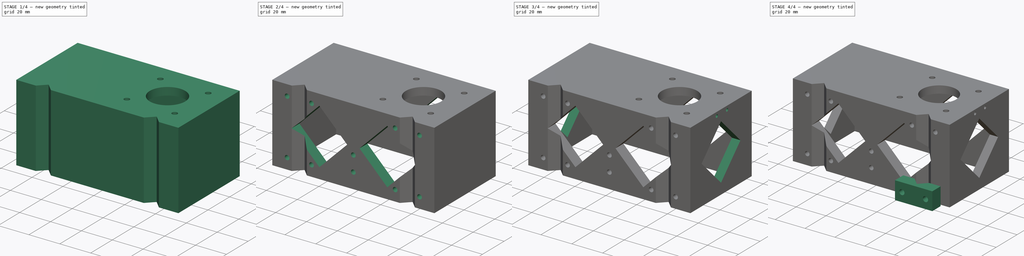
[diagram: build sequence overview — one tinted view per stage of 4, left to right]
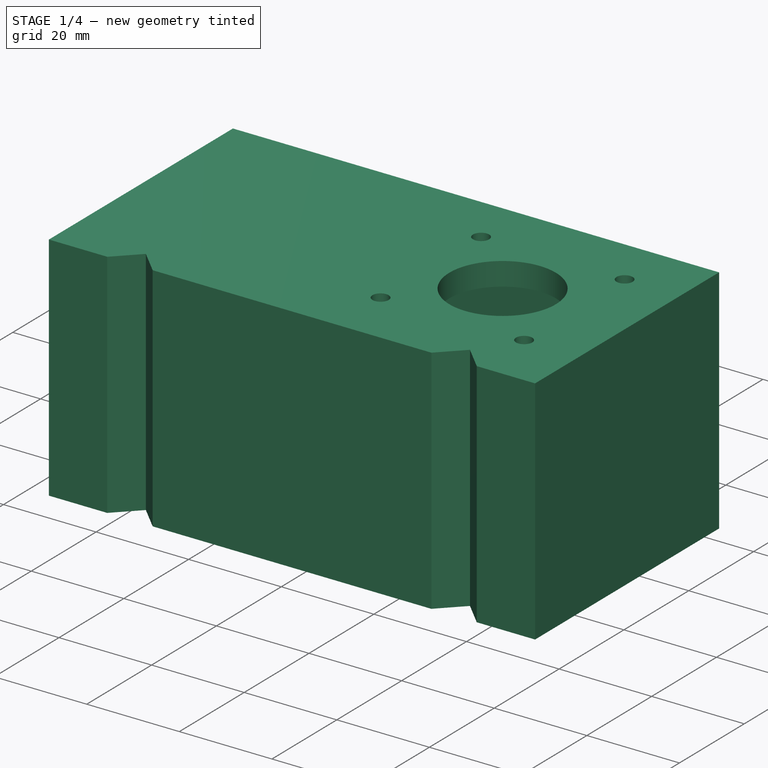
[diagram: stage 1 of 4 — iso view after this stage's code; geometry added in this stage tinted green]
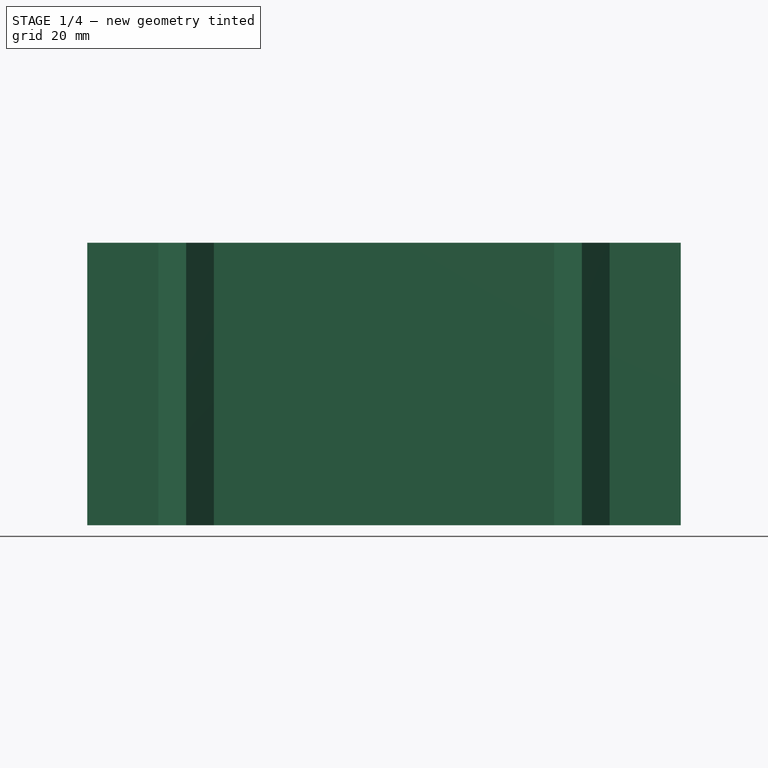
[diagram: stage 1 of 4 — front view after this stage's code; geometry added in this stage tinted green]
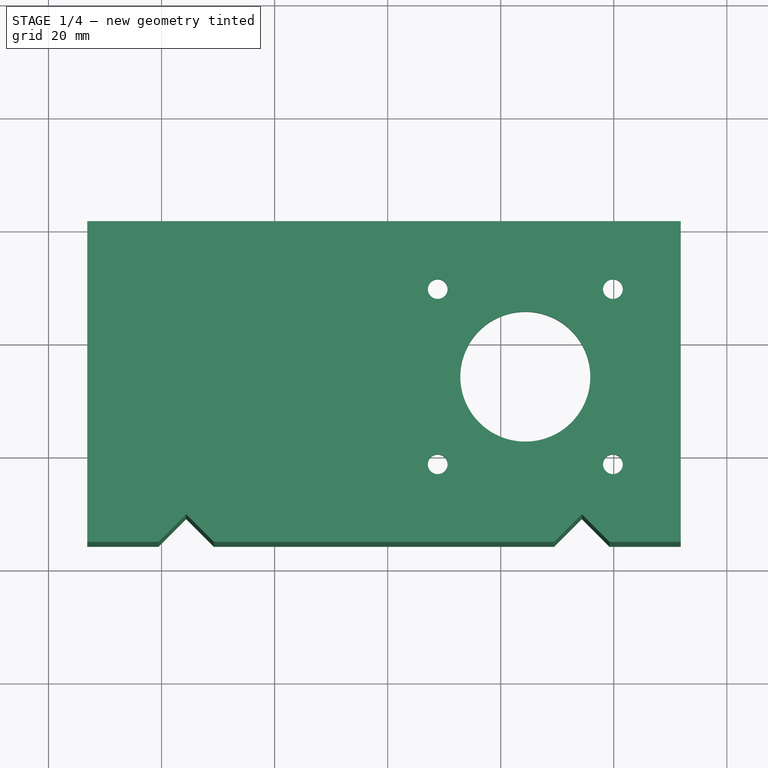
[diagram: stage 1 of 4 — top view after this stage's code; geometry added in this stage tinted green]
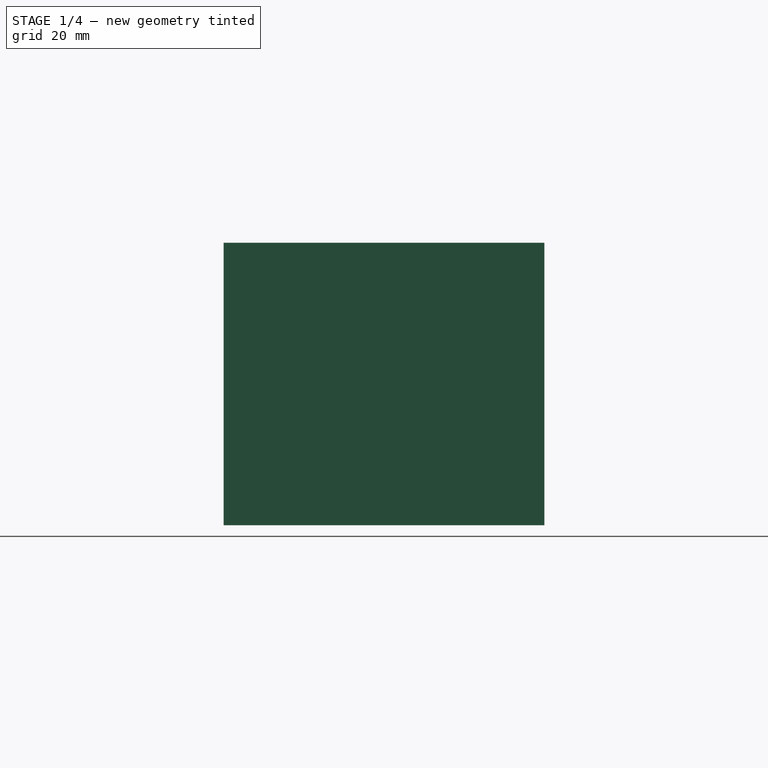
[diagram: stage 1 of 4 — right view after this stage's code; geometry added in this stage tinted green]
FCSTD DOCUMENT  (FreeCAD 0.16R4924 (Git))
Label: monty_Zbox
License: All rights reserved
LicenseURL: http://en.wikipedia.org/wiki/All_rights_reserved
objects: Sketcher::SketchObject×10, PartDesign::Pocket×7, PartDesign::Pad×2
note: 28 computed .brp shape members not serialized (recipe doc carries the construction recipe); baked Part::Feature solids carry a one-line shape summary decoded from their .brp

FEATURE [Sketcher::SketchObject] Sketch
  sketch-geometry (50):
    g0: Circle CenterX=104.35 CenterY=53.5 CenterZ=0 NormalX=0 NormalY=0 NormalZ=1 Radius=11.5
    g1: Circle [constr] CenterX=44.35 CenterY=23.5 CenterZ=0 NormalX=0 NormalY=0 NormalZ=1 Radius=4
    g2: Circle [constr] CenterX=114.35 CenterY=23.5 CenterZ=0 NormalX=0 NormalY=0 NormalZ=1 Radius=4
    g3: LineSegment [constr] StartX=44.35 StartY=23.5 StartZ=0 EndX=114.35 EndY=23.5 EndZ=0
    g4: LineSegment [constr] StartX=104.35 StartY=53.5 StartZ=0 EndX=104.35 EndY=23.5 EndZ=0
    g5: LineSegment [constr] StartX=119.85 StartY=69 StartZ=0 EndX=88.85 EndY=38 EndZ=0
    g6: LineSegment [constr] StartX=88.85 StartY=69 StartZ=0 EndX=119.85 EndY=38 EndZ=0
    g7: LineSegment [constr] StartX=88.85 StartY=69 StartZ=0 EndX=119.85 EndY=69 EndZ=0
    g8: LineSegment [constr] StartX=119.85 StartY=69 StartZ=0 EndX=119.85 EndY=38 EndZ=0
    g9: LineSegment [constr] StartX=119.85 StartY=38 StartZ=0 EndX=88.85 EndY=38 EndZ=0
    g10: LineSegment [constr] StartX=88.85 StartY=38 StartZ=0 EndX=88.85 EndY=69 EndZ=0
    g11: Circle CenterX=88.85 CenterY=69 CenterZ=0 NormalX=0 NormalY=0 NormalZ=1 Radius=1.75
    g12: Circle CenterX=119.85 CenterY=69 CenterZ=0 NormalX=0 NormalY=0 NormalZ=1 Radius=1.75
    g13: Circle CenterX=88.85 CenterY=38 CenterZ=0 NormalX=0 NormalY=0 NormalZ=1 Radius=1.75
    g14: Circle CenterX=119.85 CenterY=38 CenterZ=0 NormalX=0 NormalY=0 NormalZ=1 Radius=1.75
    g15: LineSegment StartX=39.4431 StartY=24.25 StartZ=0 EndX=44.35 EndY=29.1569 EndZ=0
    g16: LineSegment StartX=44.35 StartY=29.1569 StartZ=0 EndX=49.2569 EndY=24.25 EndZ=0
    g17: LineSegment StartX=49.2569 StartY=24.25 StartZ=0 EndX=109.443 EndY=24.25 EndZ=0
    g18: LineSegment StartX=109.443 StartY=24.25 StartZ=0 EndX=114.35 EndY=29.1569 EndZ=0
    g19: LineSegment StartX=114.35 StartY=29.1569 StartZ=0 EndX=119.257 EndY=24.25 EndZ=0
    g20: LineSegment StartX=131.85 StartY=24.25 StartZ=0 EndX=131.85 EndY=81 EndZ=0
    g21: LineSegment StartX=131.85 StartY=81 StartZ=0 EndX=26.85 EndY=81 EndZ=0
    g22: LineSegment StartX=26.85 StartY=81 StartZ=0 EndX=26.85 EndY=24.25 EndZ=0
    g23: LineSegment StartX=26.85 StartY=24.25 StartZ=0 EndX=39.4431 EndY=24.25 EndZ=0
    g24: LineSegment [constr] StartX=39.4431 StartY=24.25 StartZ=0 EndX=49.2569 EndY=24.25 EndZ=0
    g25: LineSegment [constr] StartX=109.443 StartY=24.25 StartZ=0 EndX=119.257 EndY=24.25 EndZ=0
    g26: LineSegment StartX=119.257 StartY=24.25 StartZ=0 EndX=131.85 EndY=24.25 EndZ=0
    g27: LineSegment [constr] StartX=119.257 StartY=24.25 StartZ=0 EndX=119.257 EndY=22.75 EndZ=0
    g28: LineSegment [constr] StartX=126.85 StartY=22.75 StartZ=0 EndX=119.257 EndY=22.75 EndZ=0
    g29: LineSegment [constr] StartX=119.257 StartY=22.75 StartZ=0 EndX=114.35 EndY=17.8431 EndZ=0
    g30: LineSegment [constr] StartX=114.35 StartY=17.8431 StartZ=0 EndX=109.443 EndY=22.75 EndZ=0
    g31: LineSegment [constr] StartX=109.443 StartY=22.75 StartZ=0 EndX=101.85 EndY=22.75 EndZ=0
    g32: LineSegment [constr] StartX=101.85 StartY=22.75 StartZ=0 EndX=101.85 EndY=14.8431 EndZ=0
    g33: LineSegment [constr] StartX=101.85 StartY=14.8431 StartZ=0 EndX=126.85 EndY=14.8431 EndZ=0
    g34: LineSegment [constr] StartX=126.85 StartY=14.8431 StartZ=0 EndX=126.85 EndY=22.75 EndZ=0
    g35: LineSegment [constr] StartX=109.443 StartY=22.75 StartZ=0 EndX=119.257 EndY=22.75 EndZ=0
    g36: LineSegment [constr] StartX=31.85 StartY=22.75 StartZ=0 EndX=39.4431 EndY=22.75 EndZ=0
    g37: LineSegment [constr] StartX=39.4431 StartY=22.75 StartZ=0 EndX=49.2569 EndY=22.75 EndZ=0
    g38: LineSegment [constr] StartX=49.2569 StartY=22.75 StartZ=0 EndX=56.85 EndY=22.75 EndZ=0
    g39: LineSegment [constr] StartX=56.85 StartY=22.75 StartZ=0 EndX=56.85 EndY=14.8431 EndZ=0
    g40: LineSegment [constr] StartX=56.85 StartY=14.8431 StartZ=0 EndX=31.85 EndY=14.8431 EndZ=0
    g41: LineSegment [constr] StartX=31.85 StartY=14.8431 StartZ=0 EndX=31.85 EndY=22.75 EndZ=0
    g42: LineSegment [constr] StartX=39.4431 StartY=22.75 StartZ=0 EndX=44.35 EndY=17.8431 EndZ=0
    g43: LineSegment [constr] StartX=44.35 StartY=17.8431 StartZ=0 EndX=49.2569 EndY=22.75 EndZ=0
    g44: LineSegment [constr] StartX=39.4431 StartY=24.25 StartZ=0 EndX=39.4431 EndY=22.75 EndZ=0
    g45: LineSegment [constr] StartX=125.85 StartY=32 StartZ=0 EndX=125.85 EndY=75 EndZ=0
    g46: LineSegment [constr] StartX=125.85 StartY=75 StartZ=0 EndX=82.85 EndY=75 EndZ=0
    g47: LineSegment [constr] StartX=82.85 StartY=75 StartZ=0 EndX=82.85 EndY=32 EndZ=0
    g48: LineSegment [constr] StartX=82.85 StartY=32 StartZ=0 EndX=125.85 EndY=32 EndZ=0
    g49: Circle [constr] CenterX=104.35 CenterY=53.5 CenterZ=0 NormalX=0 NormalY=0 NormalZ=1 Radius=21.5
  constraints (138):
    c: Coincident(g3,g1)
    c: Coincident(g3,g2)
    c: Horizontal(g3)
    c: Distance(g3) = 70
    c: Coincident(g4,g0)
    c: PointOnObject(g4,g3)
    c: Vertical(g4)
    c: PointOnObject(g0,g5)
    c: PointOnObject(g0,g6)
    c: Coincident(g7,g8)
    c: Coincident(g8,g9)
    c: Coincident(g9,g10)
    c: Coincident(g10,g7)
    c: Horizontal(g7)
    c: Horizontal(g9)
    c: Vertical(g8)
    c: Vertical(g10)
    c: Coincident(g7,g6)
    c: Coincident(g8,g6)
    c: Coincident(g5,g9)
    c: Coincident(g5,g7)
    c: Distance(g7) = 31
    c: Equal(g8,g7)
    c: Distance(g4) = 30
    c: Coincident(g11,g6)
    c: Coincident(g12,g5)
    c: Coincident(g13,g5)
    c: Equal(g12,g11)
    c: Equal(g11,g13)
    c: Equal(g13,g14)
    c: Radius(g11) = 1.75
    c: Radius(g1) = 4
    c: Equal(g2,g1)
    c: Coincident(g6,g14)
    c: Distance(g2,g4) = 10
    c: Coincident(g15,g16)
    c: Coincident(g16,g17)
    c: Horizontal(g17)
    c: Coincident(g17,g18)
    c: Coincident(g18,g19)
    c: Vertical(g20)
    c: Coincident(g20,g21)
    c: Horizontal(g21)
    c: Coincident(g21,g22)
    c: Vertical(g22)
    c: Coincident(g22,g23)
    c: Coincident(g23,g15)
    c: Horizontal(g23)
    c: Tangent(g15,g1)
    c: Perpendicular(g15,g16)
    c: Tangent(g16,g1)
    c: Equal(g15,g16)
    c: Coincident(g24,g15)
    c: Coincident(g24,g16)
    c: Horizontal(g24)
    c: Coincident(g25,g17)
    c: Coincident(g25,g19)
    c: Horizontal(g25)
    c: Coincident(g26,g19)
    c: Coincident(g26,g20)
    c: Horizontal(g26)
    c: Equal(g18,g19)
    c: Equal(g18,g19)
    c: Perpendicular(g18,g19)
    c: Tangent(g18,g2)
    c: Tangent(g19,g2)
    c: Coincident(g27,g19)
    c: Vertical(g27)
    c: Coincident(g28,g27)
    c: Horizontal(g28)
    c: Coincident(g28,g29)
    c: Coincident(g29,g30)
    c: Coincident(g30,g31)
    c: Horizontal(g31)
    c: Coincident(g31,g32)
    c: Vertical(g32)
    c: Coincident(g32,g33)
    c: Horizontal(g33)
    c: Coincident(g33,g34)
    c: Coincident(g34,g28)
    c: Vertical(g34)
    c: Equal(g29,g30)
    c: Coincident(g35,g30)
    c: Coincident(g35,g27)
    c: Horizontal(g35)
    c: Tangent(g30,g2)
    c: Tangent(g29,g2)
    c: Perpendicular(g30,g29)
    c: Distance(g27) = 1.5
    c: Distance(g29,g33) = 3
    c: Horizontal(g36)
    c: Coincident(g36,g37)
    c: Horizontal(g37)
    c: Coincident(g37,g38)
    c: Horizontal(g38)
    c: Coincident(g38,g39)
    c: Vertical(g39)
    c: Coincident(g39,g40)
    c: Horizontal(g40)
    c: Coincident(g40,g41)
    c: Coincident(g41,g36)
    c: Vertical(g41)
    c: Coincident(g36,g42)
    c: Tangent(g42,g1)
    c: Coincident(g42,g43)
    c: Coincident(g37,g43)
    c: Perpendicular(g43,g42)
    c: Tangent(g43,g1)
    c: Equal(g43,g42)
    c: Coincident(g44,g15)
    c: Coincident(g44,g36)
    c: Vertical(g44)
    c: Equal(g44,g27)
    c: Equal(g38,g36)
    c: Equal(g32,g39)
    c: Equal(g31,g28)
    c: Equal(g28,g38)
    c: Distance(g40) = 25
    c: Radius(g0) = 11.5
    c: Coincident(g45,g46)
    c: Coincident(g46,g47)
    c: Coincident(g47,g48)
    c: Coincident(g48,g45)
    c: Equal(g45,g46)
    c: Equal(g45,g47)
    c: Equal(g45,g48)
    c: Perpendicular(g45,g48)
    c: Horizontal(g46)
    c: Tangent(g49,g45)
    c: Tangent(g49,g46)
    c: Tangent(g49,g47)
    c: Distance(g46) = 43
    c: Coincident(g49,g0)
    c: DistanceX(g22,g36) = 5
    c: DistanceY(g45,g20) = 6
    c: DistanceX(g20,g28) = -5
    c: DistanceX(g22) = 26.85
    c: DistanceY(g22) = 24.25
FEATURE [Sketcher::SketchObject] Sketch001
  sketch-geometry (50):
    g0: Circle [constr] CenterX=104.35 CenterY=53.5 CenterZ=0 NormalX=0 NormalY=0 NormalZ=1 Radius=11.5
    g1: Circle [constr] CenterX=44.35 CenterY=23.5 CenterZ=0 NormalX=0 NormalY=0 NormalZ=1 Radius=4
    g2: Circle [constr] CenterX=114.35 CenterY=23.5 CenterZ=0 NormalX=0 NormalY=0 NormalZ=1 Radius=4
    g3: LineSegment [constr] StartX=44.35 StartY=23.5 StartZ=0 EndX=114.35 EndY=23.5 EndZ=0
    g4: LineSegment [constr] StartX=104.35 StartY=53.5 StartZ=0 EndX=104.35 EndY=23.5 EndZ=0
    g5: LineSegment [constr] StartX=119.85 StartY=69 StartZ=0 EndX=88.85 EndY=38 EndZ=0
    g6: LineSegment [constr] StartX=88.85 StartY=69 StartZ=0 EndX=119.85 EndY=38 EndZ=0
    g7: LineSegment [constr] StartX=88.85 StartY=69 StartZ=0 EndX=119.85 EndY=69 EndZ=0
    g8: LineSegment [constr] StartX=119.85 StartY=69 StartZ=0 EndX=119.85 EndY=38 EndZ=0
    g9: LineSegment [constr] StartX=119.85 StartY=38 StartZ=0 EndX=88.85 EndY=38 EndZ=0
    g10: LineSegment [constr] StartX=88.85 StartY=38 StartZ=0 EndX=88.85 EndY=69 EndZ=0
    g11: Circle [constr] CenterX=88.85 CenterY=69 CenterZ=0 NormalX=0 NormalY=0 NormalZ=1 Radius=1.75
    g12: Circle [constr] CenterX=119.85 CenterY=69 CenterZ=0 NormalX=0 NormalY=0 NormalZ=1 Radius=1.75
    g13: Circle [constr] CenterX=88.85 CenterY=38 CenterZ=0 NormalX=0 NormalY=0 NormalZ=1 Radius=1.75
    g14: Circle [constr] CenterX=119.85 CenterY=38 CenterZ=0 NormalX=0 NormalY=0 NormalZ=1 Radius=1.75
    g15: LineSegment [constr] StartX=39.4431 StartY=24.25 StartZ=0 EndX=44.35 EndY=29.1569 EndZ=0
    g16: LineSegment [constr] StartX=44.35 StartY=29.1569 StartZ=0 EndX=49.2569 EndY=24.25 EndZ=0
    g17: LineSegment [constr] StartX=49.2569 StartY=24.25 StartZ=0 EndX=109.443 EndY=24.25 EndZ=0
    g18: LineSegment [constr] StartX=109.443 StartY=24.25 StartZ=0 EndX=114.35 EndY=29.1569 EndZ=0
    g19: LineSegment [constr] StartX=114.35 StartY=29.1569 StartZ=0 EndX=119.257 EndY=24.25 EndZ=0
    g20: LineSegment [constr] StartX=131.85 StartY=24.25 StartZ=0 EndX=131.85 EndY=81 EndZ=0
    g21: LineSegment [constr] StartX=131.85 StartY=81 StartZ=0 EndX=26.85 EndY=81 EndZ=0
    g22: LineSegment [constr] StartX=26.85 StartY=81 StartZ=0 EndX=26.85 EndY=24.25 EndZ=0
    g23: LineSegment [constr] StartX=26.85 StartY=24.25 StartZ=0 EndX=39.4431 EndY=24.25 EndZ=0
    g24: LineSegment [constr] StartX=39.4431 StartY=24.25 StartZ=0 EndX=49.2569 EndY=24.25 EndZ=0
    g25: LineSegment [constr] StartX=109.443 StartY=24.25 StartZ=0 EndX=119.257 EndY=24.25 EndZ=0
    g26: LineSegment [constr] StartX=119.257 StartY=24.25 StartZ=0 EndX=131.85 EndY=24.25 EndZ=0
    g27: LineSegment [constr] StartX=119.257 StartY=24.25 StartZ=0 EndX=119.257 EndY=22.75 EndZ=0
    g28: LineSegment StartX=126.85 StartY=22.75 StartZ=0 EndX=119.257 EndY=22.75 EndZ=0
    g29: LineSegment StartX=119.257 StartY=22.75 StartZ=0 EndX=114.35 EndY=17.8431 EndZ=0
    g30: LineSegment StartX=114.35 StartY=17.8431 StartZ=0 EndX=109.443 EndY=22.75 EndZ=0
    g31: LineSegment StartX=109.443 StartY=22.75 StartZ=0 EndX=101.85 EndY=22.75 EndZ=0
    g32: LineSegment StartX=101.85 StartY=22.75 StartZ=0 EndX=101.85 EndY=14.8431 EndZ=0
    g33: LineSegment StartX=101.85 StartY=14.8431 StartZ=0 EndX=126.85 EndY=14.8431 EndZ=0
    g34: LineSegment StartX=126.85 StartY=14.8431 StartZ=0 EndX=126.85 EndY=22.75 EndZ=0
    g35: LineSegment [constr] StartX=109.443 StartY=22.75 StartZ=0 EndX=119.257 EndY=22.75 EndZ=0
    g36: LineSegment [constr] StartX=31.85 StartY=22.75 StartZ=0 EndX=39.4431 EndY=22.75 EndZ=0
    g37: LineSegment [constr] StartX=39.4431 StartY=22.75 StartZ=0 EndX=49.2569 EndY=22.75 EndZ=0
    g38: LineSegment [constr] StartX=49.2569 StartY=22.75 StartZ=0 EndX=56.85 EndY=22.75 EndZ=0
    g39: LineSegment [constr] StartX=56.85 StartY=22.75 StartZ=0 EndX=56.85 EndY=14.8431 EndZ=0
    g40: LineSegment [constr] StartX=56.85 StartY=14.8431 StartZ=0 EndX=31.85 EndY=14.8431 EndZ=0
    g41: LineSegment [constr] StartX=31.85 StartY=14.8431 StartZ=0 EndX=31.85 EndY=22.75 EndZ=0
    g42: LineSegment [constr] StartX=39.4431 StartY=22.75 StartZ=0 EndX=44.35 EndY=17.8431 EndZ=0
    g43: LineSegment [constr] StartX=44.35 StartY=17.8431 StartZ=0 EndX=49.2569 EndY=22.75 EndZ=0
    g44: LineSegment [constr] StartX=39.4431 StartY=24.25 StartZ=0 EndX=39.4431 EndY=22.75 EndZ=0
    g45: LineSegment [constr] StartX=125.85 StartY=32 StartZ=0 EndX=125.85 EndY=75 EndZ=0
    g46: LineSegment [constr] StartX=125.85 StartY=75 StartZ=0 EndX=82.85 EndY=75 EndZ=0
    g47: LineSegment [constr] StartX=82.85 StartY=75 StartZ=0 EndX=82.85 EndY=32 EndZ=0
    g48: LineSegment [constr] StartX=82.85 StartY=32 StartZ=0 EndX=125.85 EndY=32 EndZ=0
    g49: Circle [constr] CenterX=104.35 CenterY=53.5 CenterZ=0 NormalX=0 NormalY=0 NormalZ=1 Radius=21.5
  constraints (138):
    c: Coincident(g3,g1)
    c: Coincident(g3,g2)
    c: Horizontal(g3)
    c: Distance(g3) = 70
    c: Coincident(g4,g0)
    c: PointOnObject(g4,g3)
    c: Vertical(g4)
    c: PointOnObject(g0,g5)
    c: PointOnObject(g0,g6)
    c: Coincident(g7,g8)
    c: Coincident(g8,g9)
    c: Coincident(g9,g10)
    c: Coincident(g10,g7)
    c: Horizontal(g7)
    c: Horizontal(g9)
    c: Vertical(g8)
    c: Vertical(g10)
    c: Coincident(g7,g6)
    c: Coincident(g8,g6)
    c: Coincident(g5,g9)
    c: Coincident(g5,g7)
    c: Distance(g7) = 31
    c: Equal(g8,g7)
    c: Distance(g4) = 30
    c: Coincident(g11,g6)
    c: Coincident(g12,g5)
    c: Coincident(g13,g5)
    c: Equal(g12,g11)
    c: Equal(g11,g13)
    c: Equal(g13,g14)
    c: Radius(g11) = 1.75
    c: Radius(g1) = 4
    c: Equal(g2,g1)
    c: Coincident(g6,g14)
    c: Distance(g2,g4) = 10
    c: Coincident(g15,g16)
    c: Coincident(g16,g17)
    c: Horizontal(g17)
    c: Coincident(g17,g18)
    c: Coincident(g18,g19)
    c: Vertical(g20)
    c: Coincident(g20,g21)
    c: Horizontal(g21)
    c: Coincident(g21,g22)
    c: Vertical(g22)
    c: Coincident(g22,g23)
    c: Coincident(g23,g15)
    c: Horizontal(g23)
    c: Tangent(g15,g1)
    c: Perpendicular(g15,g16)
    c: Tangent(g16,g1)
    c: Equal(g15,g16)
    c: Coincident(g24,g15)
    c: Coincident(g24,g16)
    c: Horizontal(g24)
    c: Coincident(g25,g17)
    c: Coincident(g25,g19)
    c: Horizontal(g25)
    c: Coincident(g26,g19)
    c: Coincident(g26,g20)
    c: Horizontal(g26)
    c: Equal(g18,g19)
    c: Equal(g18,g19)
    c: Perpendicular(g18,g19)
    c: Tangent(g18,g2)
    c: Tangent(g19,g2)
    c: Coincident(g27,g19)
    c: Vertical(g27)
    c: Coincident(g28,g27)
    c: Horizontal(g28)
    c: Coincident(g28,g29)
    c: Coincident(g29,g30)
    c: Coincident(g30,g31)
    c: Horizontal(g31)
    c: Coincident(g31,g32)
    c: Vertical(g32)
    c: Coincident(g32,g33)
    c: Horizontal(g33)
    c: Coincident(g33,g34)
    c: Coincident(g34,g28)
    c: Vertical(g34)
    c: Equal(g29,g30)
    c: Coincident(g35,g30)
    c: Coincident(g35,g27)
    c: Horizontal(g35)
    c: Tangent(g30,g2)
    c: Tangent(g29,g2)
    c: Perpendicular(g30,g29)
    c: Distance(g27) = 1.5
    c: Distance(g29,g33) = 3
    c: Horizontal(g36)
    c: Coincident(g36,g37)
    c: Horizontal(g37)
    c: Coincident(g37,g38)
    c: Horizontal(g38)
    c: Coincident(g38,g39)
    c: Vertical(g39)
    c: Coincident(g39,g40)
    c: Horizontal(g40)
    c: Coincident(g40,g41)
    c: Coincident(g41,g36)
    c: Vertical(g41)
    c: Coincident(g36,g42)
    c: Tangent(g42,g1)
    c: Coincident(g42,g43)
    c: Coincident(g37,g43)
    c: Perpendicular(g43,g42)
    c: Tangent(g43,g1)
    c: Equal(g43,g42)
    c: Coincident(g44,g15)
    c: Coincident(g44,g36)
    c: Vertical(g44)
    c: Equal(g44,g27)
    c: Equal(g38,g36)
    c: Equal(g32,g39)
    c: Equal(g31,g28)
    c: Equal(g28,g38)
    c: Distance(g40) = 25
    c: Radius(g0) = 11.5
    c: Coincident(g45,g46)
    c: Coincident(g46,g47)
    c: Coincident(g47,g48)
    c: Coincident(g48,g45)
    c: Equal(g45,g46)
    c: Equal(g45,g47)
    c: Equal(g45,g48)
    c: Perpendicular(g45,g48)
    c: Horizontal(g46)
    c: Tangent(g49,g45)
    c: Tangent(g49,g46)
    c: Tangent(g49,g47)
    c: Distance(g46) = 43
    c: Coincident(g49,g0)
    c: DistanceX(g22,g36) = 5
    c: DistanceY(g45,g20) = 6
    c: DistanceX(g20,g28) = -5
    c: DistanceX(g22) = 26.85
    c: DistanceY(g22) = 24.25
FEATURE [PartDesign::Pad] Pad
  Length = 50
  Length2 = 100
  Sketch = -> Sketch
  Type = 0
FEATURE [Sketcher::SketchObject] Sketch002
  ExternalGeometry = -> [Pad]
  Placement = pos=(0,0,0) rot=(1,0,0;3.14159rad)
  Support = -> Pad [Face16]
  sketch-geometry (10):
    g0: LineSegment StartX=126.35 StartY=-75.5 StartZ=0 EndX=126.35 EndY=-31.5 EndZ=0
    g1: LineSegment StartX=126.35 StartY=-31.5 StartZ=0 EndX=82.35 EndY=-31.5 EndZ=0
    g2: LineSegment [constr] StartX=82.35 StartY=-31.5 StartZ=0 EndX=82.35 EndY=-75.5 EndZ=0
    g3: LineSegment StartX=82.35 StartY=-75.5 StartZ=0 EndX=126.35 EndY=-75.5 EndZ=0
    g4: Circle [constr] CenterX=104.35 CenterY=-53.5 CenterZ=0 NormalX=0 NormalY=0 NormalZ=1 Radius=31.1127
    g5: LineSegment StartX=82.35 StartY=-31.5 StartZ=0 EndX=32.35 EndY=-31.5 EndZ=0
    g6: LineSegment StartX=32.35 StartY=-31.5 StartZ=0 EndX=32.35 EndY=-75.5 EndZ=0
    g7: LineSegment StartX=32.35 StartY=-75.5 StartZ=0 EndX=82.35 EndY=-75.5 EndZ=0
    g8: LineSegment [constr] StartX=32.35 StartY=-31.5 StartZ=0 EndX=26.85 EndY=-31.5 EndZ=0
    g9: LineSegment [constr] StartX=126.35 StartY=-31.5 StartZ=0 EndX=131.85 EndY=-31.5 EndZ=0
  constraints (28):
    c: Coincident(g0,g1)
    c: Coincident(g1,g2)
    c: Coincident(g2,g3)
    c: Coincident(g3,g0)
    c: Equal(g0,g1)
    c: Equal(g0,g2)
    c: Equal(g0,g3)
    c: PointOnObject(g0,g4)
    c: PointOnObject(g1,g4)
    c: PointOnObject(g2,g4)
    c: PointOnObject(g3,g4)
    c: Horizontal(g3)
    c: Coincident(g4,g-3)
    c: Distance(g1) = 44
    c: Coincident(g1,g5)
    c: Horizontal(g5)
    c: Coincident(g5,g6)
    c: Vertical(g6)
    c: Coincident(g6,g7)
    c: Coincident(g7,g2)
    c: Horizontal(g7)
    c: Coincident(g8,g5)
    c: PointOnObject(g8,g-4)
    c: Horizontal(g8)
    c: Coincident(g9,g0)
    c: PointOnObject(g9,g-5)
    c: Horizontal(g9)
    c: Equal(g9,g8)
FEATURE [PartDesign::Pocket] Pocket
  Length = 45
  Sketch = -> Sketch002
  Type = 0
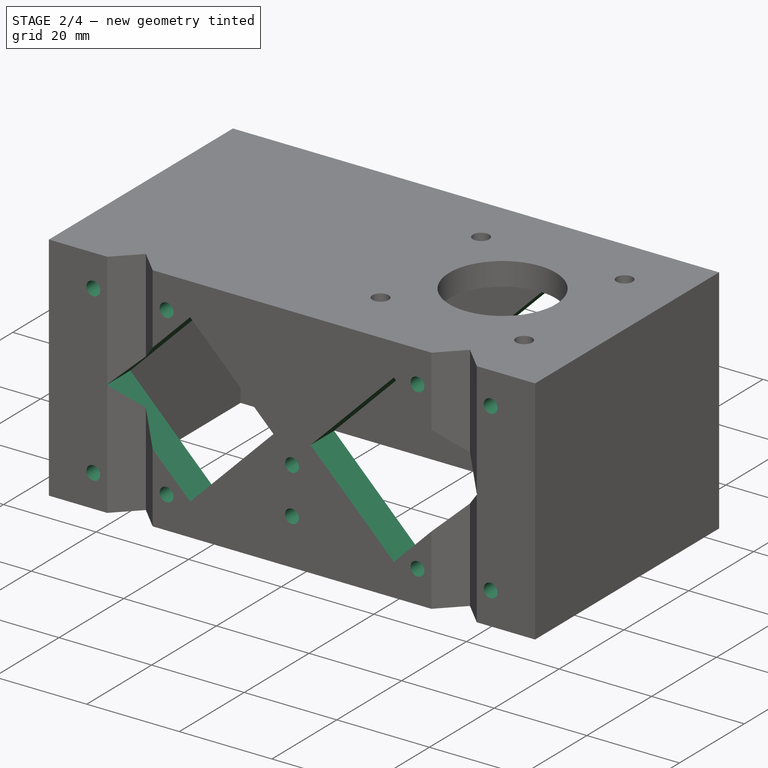
[diagram: stage 2 of 4 — iso view after this stage's code; geometry added in this stage tinted green]
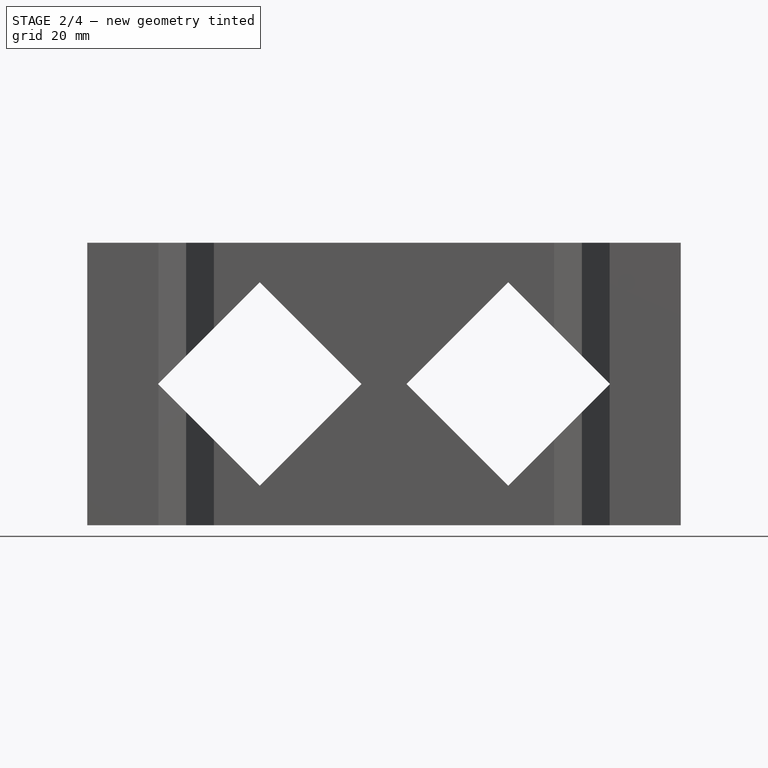
[diagram: stage 2 of 4 — front view after this stage's code; geometry added in this stage tinted green]
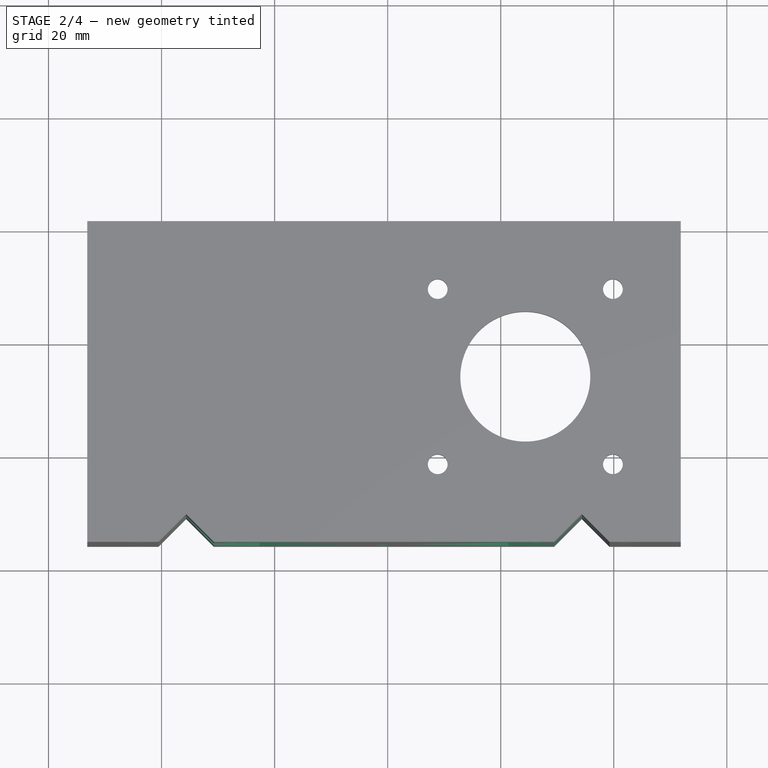
[diagram: stage 2 of 4 — top view after this stage's code; geometry added in this stage tinted green]
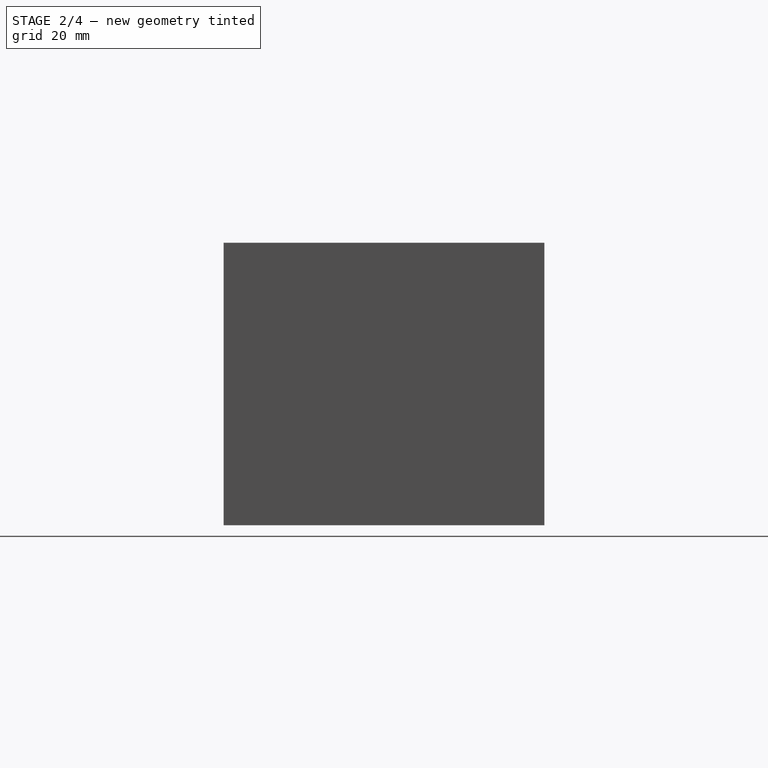
[diagram: stage 2 of 4 — right view after this stage's code; geometry added in this stage tinted green]
FEATURE [Sketcher::SketchObject] Sketch004
  ExternalGeometry = -> [Pocket]
  Placement = pos=(0,24.25,0) rot=(1,0,0;1.5708rad)
  Support = -> Pocket [Face7]
  sketch-geometry (15):
    g0: Circle CenterX=36.4431 CenterY=7 CenterZ=0 NormalX=0 NormalY=0 NormalZ=1 Radius=1.5
    g1: LineSegment [constr] StartX=52.2569 StartY=7 StartZ=0 EndX=36.4431 EndY=7 EndZ=0
    g2: Circle CenterX=52.2569 CenterY=7 CenterZ=0 NormalX=0 NormalY=0 NormalZ=1 Radius=1.5
    g3: LineSegment [constr] StartX=79.35 StartY=0 StartZ=0 EndX=79.35 EndY=20 EndZ=0
    g4: Circle CenterX=79.35 CenterY=20 CenterZ=0 NormalX=0 NormalY=0 NormalZ=1 Radius=1.5
    g5: Circle CenterX=79.35 CenterY=10 CenterZ=0 NormalX=0 NormalY=0 NormalZ=1 Radius=1.5
    g6: LineSegment [constr] StartX=106.443 StartY=7 StartZ=0 EndX=122.257 EndY=7 EndZ=0
    g7: Circle CenterX=106.443 CenterY=7 CenterZ=0 NormalX=0 NormalY=0 NormalZ=1 Radius=1.5
    g8: Circle CenterX=122.257 CenterY=7 CenterZ=0 NormalX=0 NormalY=0 NormalZ=1 Radius=1.5
    g9: Circle CenterX=36.4431 CenterY=43 CenterZ=0 NormalX=0 NormalY=0 NormalZ=1 Radius=1.5
    g10: Circle CenterX=52.2569 CenterY=43 CenterZ=0 NormalX=0 NormalY=0 NormalZ=1 Radius=1.5
    g11: LineSegment [constr] StartX=36.4431 StartY=43 StartZ=0 EndX=52.2569 EndY=43 EndZ=0
    g12: Circle CenterX=106.443 CenterY=43 CenterZ=0 NormalX=0 NormalY=0 NormalZ=1 Radius=1.5
    g13: Circle CenterX=122.257 CenterY=43 CenterZ=0 NormalX=0 NormalY=0 NormalZ=1 Radius=1.5
    g14: LineSegment [constr] StartX=106.443 StartY=43 StartZ=0 EndX=122.257 EndY=43 EndZ=0
  constraints (41):
    c: Coincident(g1,g0)
    c: Horizontal(g1)
    c: Distance(g0,g-7) = 3
    c: Radius(g0) = 1.5
    c: Coincident(g2,g1)
    c: Equal(g2,g0)
    c: Symmetric(g1,g0,g-8)
    c: DistanceY(g1) = 7
    c: PointOnObject(g3,g-6)
    c: Vertical(g3)
    c: Distance(g3) = 20
    c: Coincident(g4,g3)
    c: Radius(g4) = 1.5
    c: PointOnObject(g5,g3)
    c: Equal(g5,g4)
    c: Distance(g5,g3) = 10
    c: Symmetric(g-9,g-6,g3)
    c: Horizontal(g6)
    c: Coincident(g7,g6)
    c: Coincident(g8,g6)
    c: DistanceY(g6) = 7
    c: Equal(g7,g8)
    c: Distance(g6,g-4) = 3
    c: Symmetric(g6,g6,g-3)
    c: Radius(g7) = 1.5
    c: Coincident(g11,g9)
    c: Coincident(g11,g10)
    c: Horizontal(g11)
    c: Symmetric(g10,g9,g-8)
    c: Distance(g-7,g11) = 7
    c: Radius(g9) = 1.5
    c: Distance(g9,g-7) = 3
    c: Equal(g10,g9)
    c: Equal(g13,g12)
    c: Radius(g12) = 1.5
    c: Coincident(g14,g12)
    c: Coincident(g14,g13)
    c: Horizontal(g14)
    c: Distance(g-5,g14) = 7
    c: Distance(g13,g-5) = 3
    c: Symmetric(g13,g12,g-3)
FEATURE [PartDesign::Pocket] Pocket002
  Length = 8
  Sketch = -> Sketch004
  Type = 0
FEATURE [Sketcher::SketchObject] Sketch005
  sketch-geometry (50):
    g0: Circle CenterX=104.35 CenterY=53.5 CenterZ=0 NormalX=0 NormalY=0 NormalZ=1 Radius=11.5
    g1: Circle [constr] CenterX=44.35 CenterY=23.5 CenterZ=0 NormalX=0 NormalY=0 NormalZ=1 Radius=4
    g2: Circle [constr] CenterX=114.35 CenterY=23.5 CenterZ=0 NormalX=0 NormalY=0 NormalZ=1 Radius=4
    g3: LineSegment [constr] StartX=44.35 StartY=23.5 StartZ=0 EndX=114.35 EndY=23.5 EndZ=0
    g4: LineSegment [constr] StartX=104.35 StartY=53.5 StartZ=0 EndX=104.35 EndY=23.5 EndZ=0
    g5: LineSegment [constr] StartX=119.85 StartY=69 StartZ=0 EndX=88.85 EndY=38 EndZ=0
    g6: LineSegment [constr] StartX=88.85 StartY=69 StartZ=0 EndX=119.85 EndY=38 EndZ=0
    g7: LineSegment [constr] StartX=88.85 StartY=69 StartZ=0 EndX=119.85 EndY=69 EndZ=0
    g8: LineSegment [constr] StartX=119.85 StartY=69 StartZ=0 EndX=119.85 EndY=38 EndZ=0
    g9: LineSegment [constr] StartX=119.85 StartY=38 StartZ=0 EndX=88.85 EndY=38 EndZ=0
    g10: LineSegment [constr] StartX=88.85 StartY=38 StartZ=0 EndX=88.85 EndY=69 EndZ=0
    g11: Circle CenterX=88.85 CenterY=69 CenterZ=0 NormalX=0 NormalY=0 NormalZ=1 Radius=1.75
    g12: Circle CenterX=119.85 CenterY=69 CenterZ=0 NormalX=0 NormalY=0 NormalZ=1 Radius=1.75
    g13: Circle CenterX=88.85 CenterY=38 CenterZ=0 NormalX=0 NormalY=0 NormalZ=1 Radius=1.75
    g14: Circle CenterX=119.85 CenterY=38 CenterZ=0 NormalX=0 NormalY=0 NormalZ=1 Radius=1.75
    g15: LineSegment StartX=39.4431 StartY=24.25 StartZ=0 EndX=44.35 EndY=29.1569 EndZ=0
    g16: LineSegment StartX=44.35 StartY=29.1569 StartZ=0 EndX=49.2569 EndY=24.25 EndZ=0
    g17: LineSegment StartX=49.2569 StartY=24.25 StartZ=0 EndX=109.443 EndY=24.25 EndZ=0
    g18: LineSegment StartX=109.443 StartY=24.25 StartZ=0 EndX=114.35 EndY=29.1569 EndZ=0
    g19: LineSegment StartX=114.35 StartY=29.1569 StartZ=0 EndX=119.257 EndY=24.25 EndZ=0
    g20: LineSegment StartX=131.85 StartY=24.25 StartZ=0 EndX=131.85 EndY=81 EndZ=0
    g21: LineSegment StartX=131.85 StartY=81 StartZ=0 EndX=26.85 EndY=81 EndZ=0
    g22: LineSegment StartX=26.85 StartY=81 StartZ=0 EndX=26.85 EndY=24.25 EndZ=0
    g23: LineSegment StartX=26.85 StartY=24.25 StartZ=0 EndX=39.4431 EndY=24.25 EndZ=0
    g24: LineSegment [constr] StartX=39.4431 StartY=24.25 StartZ=0 EndX=49.2569 EndY=24.25 EndZ=0
    g25: LineSegment [constr] StartX=109.443 StartY=24.25 StartZ=0 EndX=119.257 EndY=24.25 EndZ=0
    g26: LineSegment StartX=119.257 StartY=24.25 StartZ=0 EndX=131.85 EndY=24.25 EndZ=0
    g27: LineSegment [constr] StartX=119.257 StartY=24.25 StartZ=0 EndX=119.257 EndY=22.75 EndZ=0
    g28: LineSegment [constr] StartX=126.85 StartY=22.75 StartZ=0 EndX=119.257 EndY=22.75 EndZ=0
    g29: LineSegment [constr] StartX=119.257 StartY=22.75 StartZ=0 EndX=114.35 EndY=17.8431 EndZ=0
    g30: LineSegment [constr] StartX=114.35 StartY=17.8431 StartZ=0 EndX=109.443 EndY=22.75 EndZ=0
    g31: LineSegment [constr] StartX=109.443 StartY=22.75 StartZ=0 EndX=101.85 EndY=22.75 EndZ=0
    g32: LineSegment [constr] StartX=101.85 StartY=22.75 StartZ=0 EndX=101.85 EndY=14.8431 EndZ=0
    g33: LineSegment [constr] StartX=101.85 StartY=14.8431 StartZ=0 EndX=126.85 EndY=14.8431 EndZ=0
    g34: LineSegment [constr] StartX=126.85 StartY=14.8431 StartZ=0 EndX=126.85 EndY=22.75 EndZ=0
    g35: LineSegment [constr] StartX=109.443 StartY=22.75 StartZ=0 EndX=119.257 EndY=22.75 EndZ=0
    g36: LineSegment [constr] StartX=31.85 StartY=22.75 StartZ=0 EndX=39.4431 EndY=22.75 EndZ=0
    g37: LineSegment [constr] StartX=39.4431 StartY=22.75 StartZ=0 EndX=49.2569 EndY=22.75 EndZ=0
    g38: LineSegment [constr] StartX=49.2569 StartY=22.75 StartZ=0 EndX=56.85 EndY=22.75 EndZ=0
    g39: LineSegment [constr] StartX=56.85 StartY=22.75 StartZ=0 EndX=56.85 EndY=14.8431 EndZ=0
    g40: LineSegment [constr] StartX=56.85 StartY=14.8431 StartZ=0 EndX=31.85 EndY=14.8431 EndZ=0
    g41: LineSegment [constr] StartX=31.85 StartY=14.8431 StartZ=0 EndX=31.85 EndY=22.75 EndZ=0
    g42: LineSegment [constr] StartX=39.4431 StartY=22.75 StartZ=0 EndX=44.35 EndY=17.8431 EndZ=0
    g43: LineSegment [constr] StartX=44.35 StartY=17.8431 StartZ=0 EndX=49.2569 EndY=22.75 EndZ=0
    g44: LineSegment [constr] StartX=39.4431 StartY=24.25 StartZ=0 EndX=39.4431 EndY=22.75 EndZ=0
    g45: LineSegment [constr] StartX=125.85 StartY=32 StartZ=0 EndX=125.85 EndY=75 EndZ=0
    g46: LineSegment [constr] StartX=125.85 StartY=75 StartZ=0 EndX=82.85 EndY=75 EndZ=0
    g47: LineSegment [constr] StartX=82.85 StartY=75 StartZ=0 EndX=82.85 EndY=32 EndZ=0
    g48: LineSegment [constr] StartX=82.85 StartY=32 StartZ=0 EndX=125.85 EndY=32 EndZ=0
    g49: Circle [constr] CenterX=104.35 CenterY=53.5 CenterZ=0 NormalX=0 NormalY=0 NormalZ=1 Radius=21.5
  constraints (138):
    c: Coincident(g3,g1)
    c: Coincident(g3,g2)
    c: Horizontal(g3)
    c: Distance(g3) = 70
    c: Coincident(g4,g0)
    c: PointOnObject(g4,g3)
    c: Vertical(g4)
    c: PointOnObject(g0,g5)
    c: PointOnObject(g0,g6)
    c: Coincident(g7,g8)
    c: Coincident(g8,g9)
    c: Coincident(g9,g10)
    c: Coincident(g10,g7)
    c: Horizontal(g7)
    c: Horizontal(g9)
    c: Vertical(g8)
    c: Vertical(g10)
    c: Coincident(g7,g6)
    c: Coincident(g8,g6)
    c: Coincident(g5,g9)
    c: Coincident(g5,g7)
    c: Distance(g7) = 31
    c: Equal(g8,g7)
    c: Distance(g4) = 30
    c: Coincident(g11,g6)
    c: Coincident(g12,g5)
    c: Coincident(g13,g5)
    c: Equal(g12,g11)
    c: Equal(g11,g13)
    c: Equal(g13,g14)
    c: Radius(g11) = 1.75
    c: Radius(g1) = 4
    c: Equal(g2,g1)
    c: Coincident(g6,g14)
    c: Distance(g2,g4) = 10
    c: Coincident(g15,g16)
    c: Coincident(g16,g17)
    c: Horizontal(g17)
    c: Coincident(g17,g18)
    c: Coincident(g18,g19)
    c: Vertical(g20)
    c: Coincident(g20,g21)
    c: Horizontal(g21)
    c: Coincident(g21,g22)
    c: Vertical(g22)
    c: Coincident(g22,g23)
    c: Coincident(g23,g15)
    c: Horizontal(g23)
    c: Tangent(g15,g1)
    c: Perpendicular(g15,g16)
    c: Tangent(g16,g1)
    c: Equal(g15,g16)
    c: Coincident(g24,g15)
    c: Coincident(g24,g16)
    c: Horizontal(g24)
    c: Coincident(g25,g17)
    c: Coincident(g25,g19)
    c: Horizontal(g25)
    c: Coincident(g26,g19)
    c: Coincident(g26,g20)
    c: Horizontal(g26)
    c: Equal(g18,g19)
    c: Equal(g18,g19)
    c: Perpendicular(g18,g19)
    c: Tangent(g18,g2)
    c: Tangent(g19,g2)
    c: Coincident(g27,g19)
    c: Vertical(g27)
    c: Coincident(g28,g27)
    c: Horizontal(g28)
    c: Coincident(g28,g29)
    c: Coincident(g29,g30)
    c: Coincident(g30,g31)
    c: Horizontal(g31)
    c: Coincident(g31,g32)
    c: Vertical(g32)
    c: Coincident(g32,g33)
    c: Horizontal(g33)
    c: Coincident(g33,g34)
    c: Coincident(g34,g28)
    c: Vertical(g34)
    c: Equal(g29,g30)
    c: Coincident(g35,g30)
    c: Coincident(g35,g27)
    c: Horizontal(g35)
    c: Tangent(g30,g2)
    c: Tangent(g29,g2)
    c: Perpendicular(g30,g29)
    c: Distance(g27) = 1.5
    c: Distance(g29,g33) = 3
    c: Horizontal(g36)
    c: Coincident(g36,g37)
    c: Horizontal(g37)
    c: Coincident(g37,g38)
    c: Horizontal(g38)
    c: Coincident(g38,g39)
    c: Vertical(g39)
    c: Coincident(g39,g40)
    c: Horizontal(g40)
    c: Coincident(g40,g41)
    c: Coincident(g41,g36)
    c: Vertical(g41)
    c: Coincident(g36,g42)
    c: Tangent(g42,g1)
    c: Coincident(g42,g43)
    c: Coincident(g37,g43)
    c: Perpendicular(g43,g42)
    c: Tangent(g43,g1)
    c: Equal(g43,g42)
    c: Coincident(g44,g15)
    c: Coincident(g44,g36)
    c: Vertical(g44)
    c: Equal(g44,g27)
    c: Equal(g38,g36)
    c: Equal(g32,g39)
    c: Equal(g31,g28)
    c: Equal(g28,g38)
    c: Distance(g40) = 25
    c: Radius(g0) = 11.5
    c: Coincident(g45,g46)
    c: Coincident(g46,g47)
    c: Coincident(g47,g48)
    c: Coincident(g48,g45)
    c: Equal(g45,g46)
    c: Equal(g45,g47)
    c: Equal(g45,g48)
    c: Perpendicular(g45,g48)
    c: Horizontal(g46)
    c: Tangent(g49,g45)
    c: Tangent(g49,g46)
    c: Tangent(g49,g47)
    c: Distance(g46) = 43
    c: Coincident(g49,g0)
    c: DistanceX(g22,g36) = 5
    c: DistanceY(g45,g20) = 6
    c: DistanceX(g20,g28) = -5
    c: DistanceX(g22) = 26.85
    c: DistanceY(g22) = 24.25
FEATURE [Sketcher::SketchObject] Sketch006
  ExternalGeometry = -> [Pocket002]
  Placement = pos=(0,81,0) rot=(0,0.707107,0.707107;3.14159rad)
  Support = -> Pocket002 [Face10]
  sketch-geometry (21):
    g0: LineSegment [constr] StartX=-131.85 StartY=25 StartZ=0 EndX=-119.35 EndY=25 EndZ=0
    g1: LineSegment [constr] StartX=-119.35 StartY=25 StartZ=0 EndX=-83.35 EndY=25 EndZ=0
    g2: LineSegment [constr] StartX=-75.35 StartY=25 StartZ=0 EndX=-39.35 EndY=25 EndZ=0
    g3: LineSegment [constr] StartX=-39.35 StartY=25 StartZ=0 EndX=-26.85 EndY=25 EndZ=0
    g4: LineSegment StartX=-83.35 StartY=25 StartZ=0 EndX=-101.35 EndY=43 EndZ=0
    g5: LineSegment StartX=-101.35 StartY=43 StartZ=0 EndX=-119.35 EndY=25 EndZ=0
    g6: LineSegment StartX=-119.35 StartY=25 StartZ=0 EndX=-101.35 EndY=7 EndZ=0
    g7: LineSegment StartX=-101.35 StartY=7 StartZ=0 EndX=-83.35 EndY=25 EndZ=0
    g8: Circle [constr] CenterX=-101.35 CenterY=25 CenterZ=0 NormalX=0 NormalY=0 NormalZ=1 Radius=18
    g9: LineSegment StartX=-39.35 StartY=25 StartZ=0 EndX=-57.35 EndY=43 EndZ=0
    g10: LineSegment StartX=-57.35 StartY=43 StartZ=0 EndX=-75.35 EndY=25 EndZ=0
    g11: LineSegment StartX=-75.35 StartY=25 StartZ=0 EndX=-57.35 EndY=7 EndZ=0
    g12: LineSegment StartX=-57.35 StartY=7 StartZ=0 EndX=-39.35 EndY=25 EndZ=0
    g13: Circle [constr] CenterX=-57.35 CenterY=25 CenterZ=0 NormalX=0 NormalY=0 NormalZ=1 Radius=18
    g14: LineSegment [constr] StartX=-124.35 StartY=0 StartZ=0 EndX=-124.35 EndY=20 EndZ=0
    g15: Circle [constr] CenterX=-124.35 CenterY=20 CenterZ=0 NormalX=0 NormalY=0 NormalZ=1 Radius=1.5
    g16: Circle [constr] CenterX=-124.35 CenterY=10 CenterZ=0 NormalX=0 NormalY=0 NormalZ=1 Radius=1.5
    g17: LineSegment [constr] StartX=-34.35 StartY=0 StartZ=0 EndX=-34.35 EndY=20 EndZ=0
    g18: Circle [constr] CenterX=-34.35 CenterY=20 CenterZ=0 NormalX=0 NormalY=0 NormalZ=1 Radius=1.5
    g19: Circle [constr] CenterX=-34.35 CenterY=10 CenterZ=0 NormalX=0 NormalY=0 NormalZ=1 Radius=1.5
    g20: LineSegment [constr] StartX=-83.35 StartY=25 StartZ=0 EndX=-75.35 EndY=25 EndZ=0
  constraints (60):
    c: PointOnObject(g0,g-3)
    c: Horizontal(g0)
    c: Coincident(g0,g1)
    c: Horizontal(g1)
    c: Horizontal(g2)
    c: Coincident(g2,g3)
    c: PointOnObject(g3,g-5)
    c: Horizontal(g3)
    c: DistanceY(g0) = 25
    c: Coincident(g4,g5)
    c: Coincident(g5,g6)
    c: Coincident(g6,g7)
    c: Coincident(g7,g4)
    c: Equal(g4,g5)
    c: Equal(g4,g6)
    c: Equal(g4,g7)
    c: PointOnObject(g4,g8)
    c: PointOnObject(g5,g8)
    c: PointOnObject(g6,g8)
    c: PointOnObject(g7,g8)
    c: Coincident(g0,g5)
    c: Coincident(g1,g4)
    c: Equal(g0,g3)
    c: Coincident(g9,g10)
    c: Coincident(g10,g11)
    c: Coincident(g11,g12)
    c: Coincident(g12,g9)
    c: Equal(g9,g10)
    c: Equal(g9,g11)
    c: Equal(g9,g12)
    c: PointOnObject(g9,g13)
    c: PointOnObject(g10,g13)
    c: PointOnObject(g11,g13)
    c: PointOnObject(g12,g13)
    c: Coincident(g2,g9)
    c: Equal(g13,g8)
    c: Radius(g8) = 18
    c: Vertical(g14)
    c: PointOnObject(g14,g-4)
    c: Coincident(g14,g15)
    c: PointOnObject(g16,g14)
    c: Equal(g16,g15)
    c: Radius(g16) = 1.5
    c: DistanceY(g14,g16) = -10
    c: DistanceY(g16) = 10
    c: DistanceX(g14,g-4) = -7.5
    c: PointOnObject(g17,g-4)
    c: Vertical(g17)
    c: Coincident(g18,g17)
    c: DistanceX(g17,g-5) = 7.5
    c: Radius(g18) = 1.5
    c: PointOnObject(g19,g17)
    c: Equal(g19,g18)
    c: Distance(g17,g19) = 10
    c: Distance(g19,g17) = 10
    c: Coincident(g10,g2)
    c: Coincident(g20,g1)
    c: Coincident(g20,g2)
    c: Horizontal(g20)
    c: Distance(g20) = 8
FEATURE [PartDesign::Pocket] Pocket003
  Length = 5
  Sketch = -> Sketch006
  Type = 1
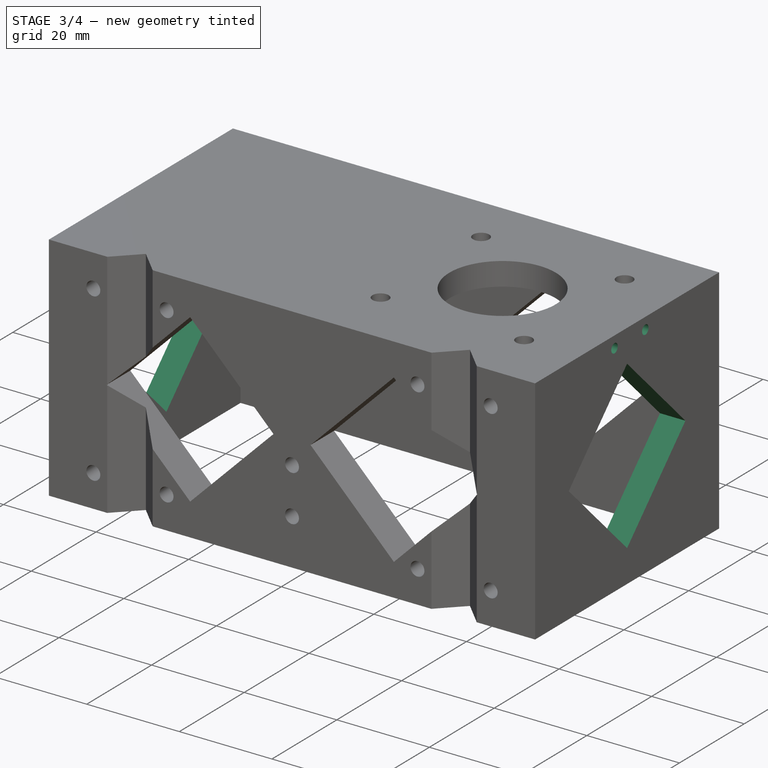
[diagram: stage 3 of 4 — iso view after this stage's code; geometry added in this stage tinted green]
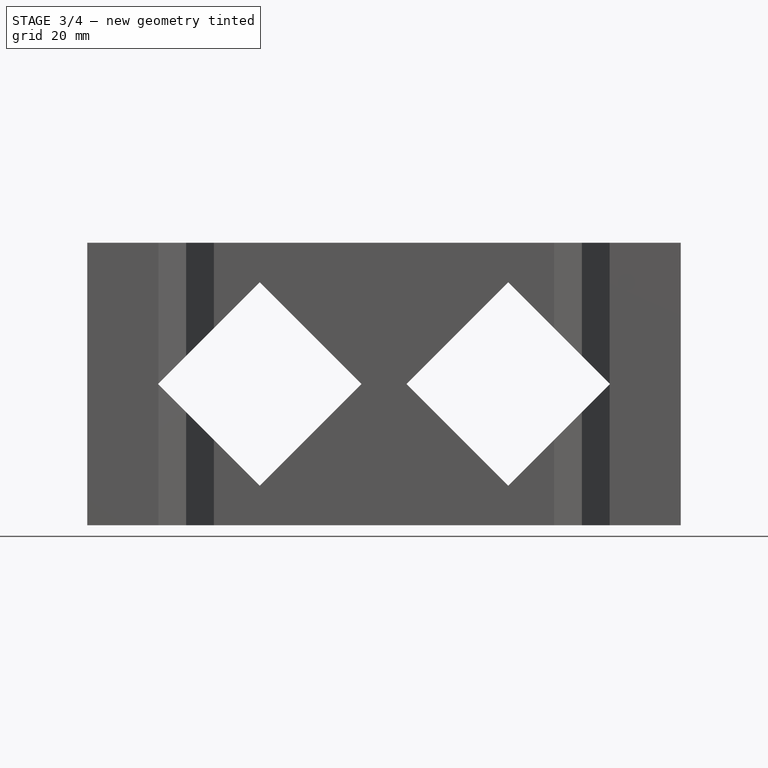
[diagram: stage 3 of 4 — front view after this stage's code; geometry added in this stage tinted green]
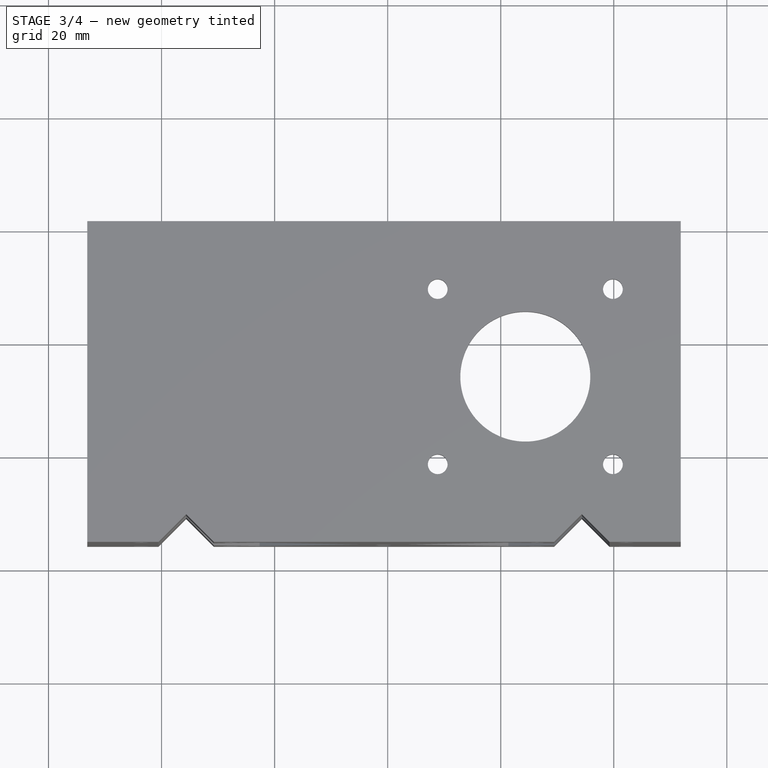
[diagram: stage 3 of 4 — top view after this stage's code; geometry added in this stage tinted green]
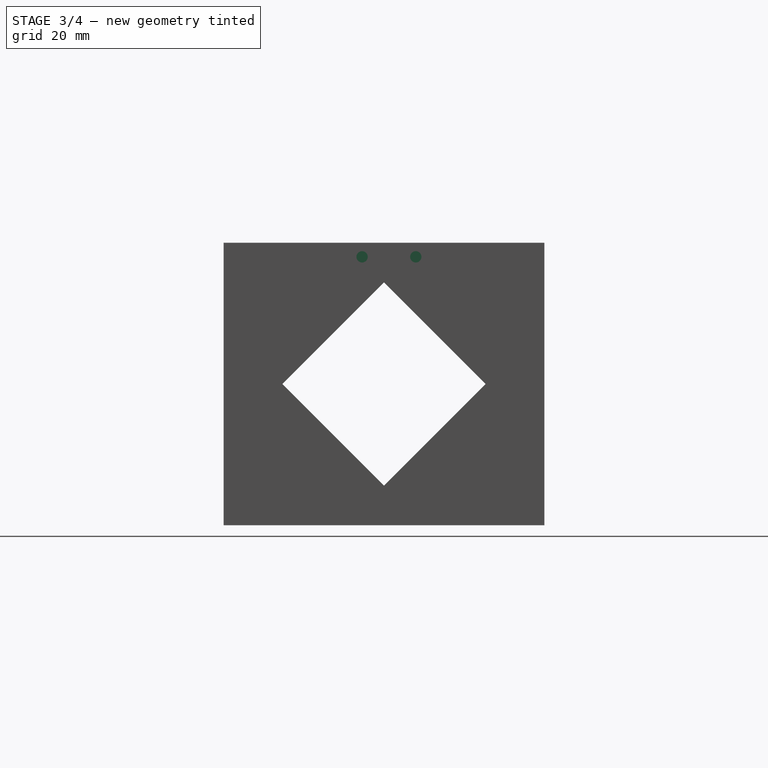
[diagram: stage 3 of 4 — right view after this stage's code; geometry added in this stage tinted green]
FEATURE [Sketcher::SketchObject] Sketch007
  ExternalGeometry = -> [Pocket002]
  Placement = pos=(0,81,0) rot=(0,0.707107,0.707107;3.14159rad)
  Support = -> Pocket003 [Face8]
  sketch-geometry (6):
    g0: LineSegment [constr] StartX=-124.35 StartY=0 StartZ=0 EndX=-124.35 EndY=20 EndZ=0
    g1: Circle CenterX=-124.35 CenterY=20 CenterZ=0 NormalX=0 NormalY=0 NormalZ=1 Radius=1.5
    g2: Circle CenterX=-124.35 CenterY=10 CenterZ=0 NormalX=0 NormalY=0 NormalZ=1 Radius=1.5
    g3: LineSegment [constr] StartX=-34.35 StartY=0 StartZ=0 EndX=-34.35 EndY=20 EndZ=0
    g4: Circle CenterX=-34.35 CenterY=20 CenterZ=0 NormalX=0 NormalY=0 NormalZ=1 Radius=1.5
    g5: Circle CenterX=-34.35 CenterY=10 CenterZ=0 NormalX=0 NormalY=0 NormalZ=1 Radius=1.5
  constraints (18):
    c: Vertical(g0)
    c: PointOnObject(g0,g-4)
    c: Coincident(g0,g1)
    c: PointOnObject(g2,g0)
    c: Equal(g2,g1)
    c: Radius(g2) = 1.5
    c: DistanceY(g0,g2) = -10
    c: DistanceY(g2) = 10
    c: DistanceX(g0,g-4) = -7.5
    c: PointOnObject(g3,g-4)
    c: Vertical(g3)
    c: Coincident(g4,g3)
    c: DistanceX(g3,g-5) = 7.5
    c: Radius(g4) = 1.5
    c: PointOnObject(g5,g3)
    c: Equal(g5,g4)
    c: Distance(g3,g5) = 10
    c: Distance(g5,g3) = 10
FEATURE [PartDesign::Pocket] Pocket004
  Length = 6
  Sketch = -> Sketch007
  Type = 0
FEATURE [Sketcher::SketchObject] Sketch008
  ExternalGeometry = -> [Pocket004]
  Placement = pos=(26.85,0,0) rot=(0.57735,-0.57735,-0.57735;2.0944rad)
  Support = -> Pocket004 [Face6]
  sketch-geometry (6):
    g0: LineSegment [constr] StartX=-52.625 StartY=0 StartZ=0 EndX=-52.625 EndY=25 EndZ=0
    g1: LineSegment StartX=-52.625 StartY=7 StartZ=0 EndX=-34.625 EndY=25 EndZ=0
    g2: LineSegment StartX=-34.625 StartY=25 StartZ=0 EndX=-52.625 EndY=43 EndZ=0
    g3: LineSegment StartX=-52.625 StartY=43 StartZ=0 EndX=-70.625 EndY=25 EndZ=0
    g4: LineSegment StartX=-70.625 StartY=25 StartZ=0 EndX=-52.625 EndY=7 EndZ=0
    g5: Circle [constr] CenterX=-52.625 CenterY=25 CenterZ=0 NormalX=0 NormalY=0 NormalZ=1 Radius=18
  constraints (18):
    c: PointOnObject(g0,g-3)
    c: Vertical(g0)
    c: Coincident(g1,g2)
    c: Coincident(g2,g3)
    c: Coincident(g3,g4)
    c: Coincident(g4,g1)
    c: Equal(g1,g2)
    c: Equal(g1,g3)
    c: Equal(g1,g4)
    c: PointOnObject(g1,g5)
    c: PointOnObject(g2,g5)
    c: PointOnObject(g3,g5)
    c: PointOnObject(g4,g5)
    c: Coincident(g0,g5)
    c: PointOnObject(g1,g0)
    c: Distance(g0) = 25
    c: Radius(g5) = 18
    c: Symmetric(g-3,g-3,g0)
FEATURE [PartDesign::Pocket] Pocket005
  Length = 5
  Sketch = -> Sketch008
  Type = 1
FEATURE [Sketcher::SketchObject] Sketch009
  ExternalGeometry = -> [Pocket005]
  Placement = pos=(131.85,0,0) rot=(0.57735,0.57735,0.57735;2.0944rad)
  Support = -> Pocket005 [Face10]
  sketch-geometry (4):
    g0: LineSegment [constr] StartX=53.5 StartY=50 StartZ=0 EndX=53.5 EndY=47.5 EndZ=0
    g1: LineSegment [constr] StartX=48.75 StartY=47.5 StartZ=0 EndX=58.25 EndY=47.5 EndZ=0
    g2: Circle CenterX=48.75 CenterY=47.5 CenterZ=0 NormalX=0 NormalY=0 NormalZ=1 Radius=1
    g3: Circle CenterX=58.25 CenterY=47.5 CenterZ=0 NormalX=0 NormalY=0 NormalZ=1 Radius=1
  constraints (12):
    c: PointOnObject(g0,g-3)
    c: Vertical(g0)
    c: Horizontal(g1)
    c: PointOnObject(g0,g1)
    c: Symmetric(g1,g1,g0)
    c: Distance(g1) = 9.5
    c: Distance(g0) = 2.5
    c: Coincident(g2,g1)
    c: Coincident(g3,g1)
    c: Equal(g3,g2)
    c: Radius(g2) = 1
    c: DistanceX(g0) = 53.5
FEATURE [PartDesign::Pocket] Pocket006
  Length = 8
  Sketch = -> Sketch009
  Type = 0
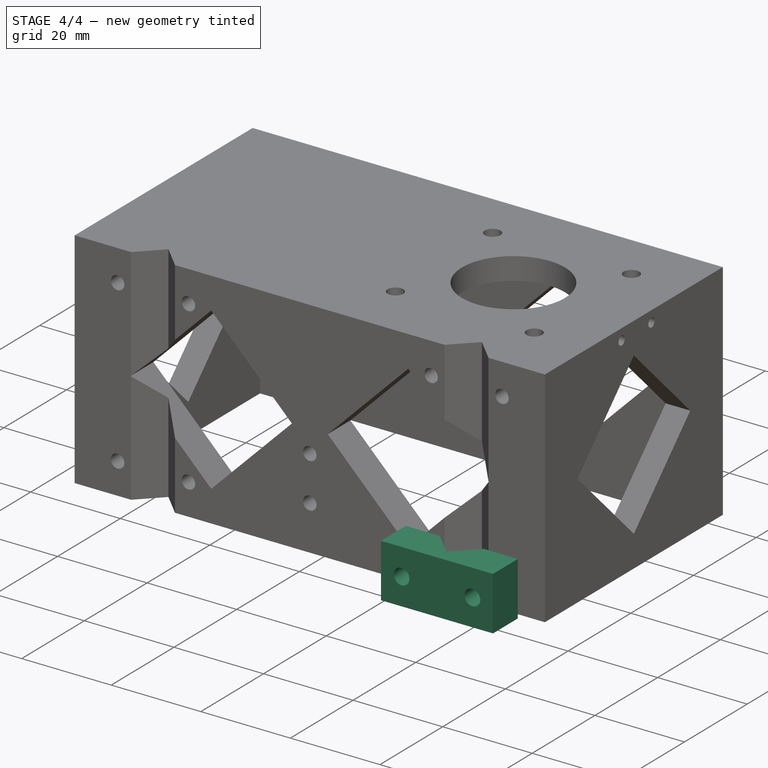
[diagram: stage 4 of 4 — iso view after this stage's code; geometry added in this stage tinted green]
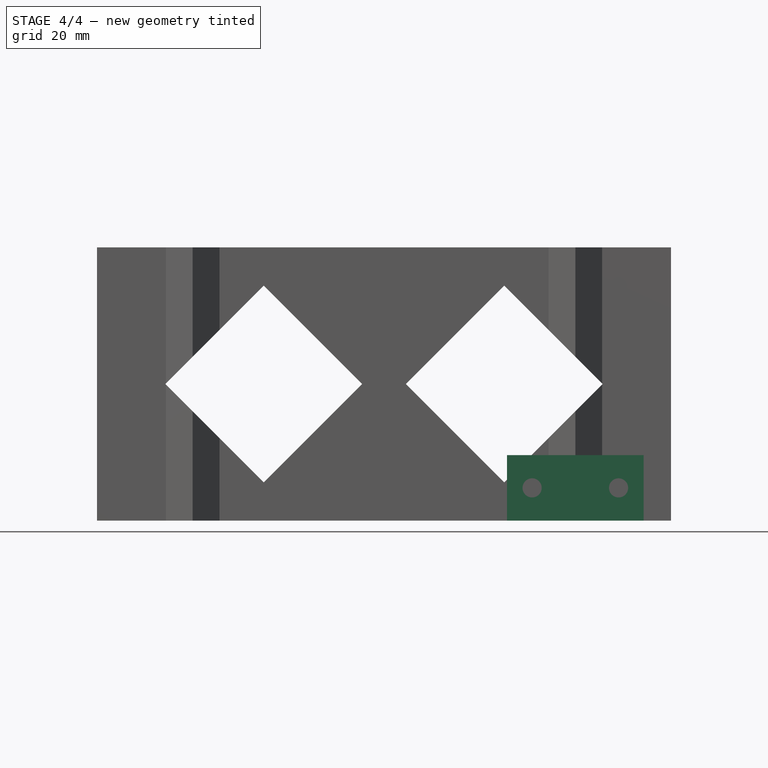
[diagram: stage 4 of 4 — front view after this stage's code; geometry added in this stage tinted green]
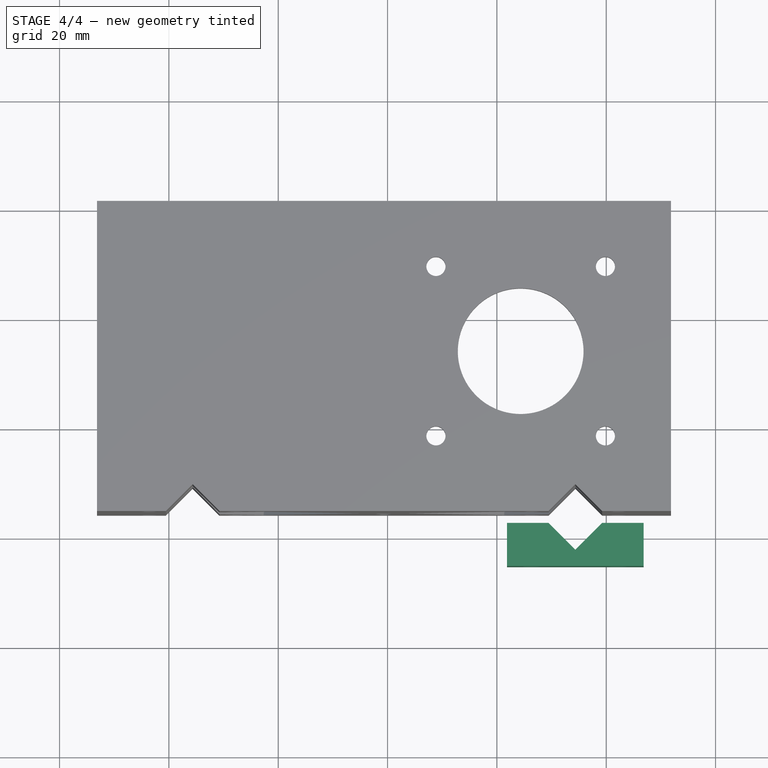
[diagram: stage 4 of 4 — top view after this stage's code; geometry added in this stage tinted green]
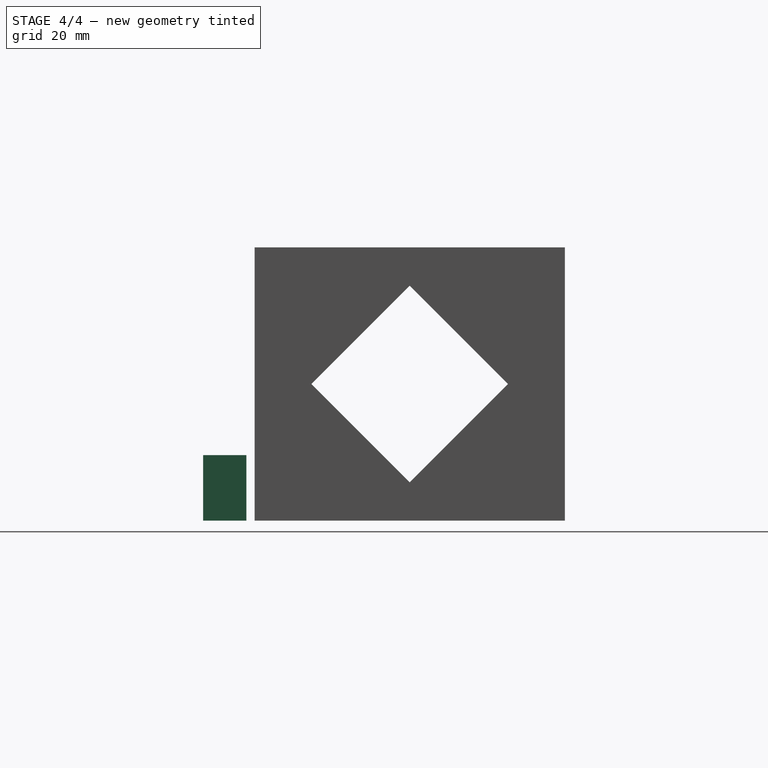
[diagram: stage 4 of 4 — right view after this stage's code; geometry added in this stage tinted green]
FEATURE [PartDesign::Pad] Pad001
  Length = 12
  Length2 = 100
  Sketch = -> Sketch001
  Type = 0
FEATURE [Sketcher::SketchObject] Sketch003
  ExternalGeometry = -> [Pad001]
  Placement = pos=(0,22.75,0) rot=(0,0.707107,0.707107;3.14159rad)
  Support = -> Pad001 [Face4]
  sketch-geometry (3):
    g0: LineSegment [constr] StartX=-122.257 StartY=6 StartZ=0 EndX=-106.443 EndY=6 EndZ=0
    g1: Circle CenterX=-122.257 CenterY=6 CenterZ=0 NormalX=0 NormalY=0 NormalZ=1 Radius=1.75
    g2: Circle CenterX=-106.443 CenterY=6 CenterZ=0 NormalX=0 NormalY=0 NormalZ=1 Radius=1.75
  constraints (8):
    c: Horizontal(g0)
    c: Symmetric(g0,g0,g-3)
    c: DistanceY(g0) = 6
    c: Coincident(g1,g0)
    c: Radius(g1) = 1.75
    c: Distance(g0,g-4) = 3
    c: Coincident(g2,g0)
    c: Equal(g2,g1)
FEATURE [PartDesign::Pocket] Pocket001  label="Zrodclamp"
  Length = 5
  Sketch = -> Sketch003
  Type = 1
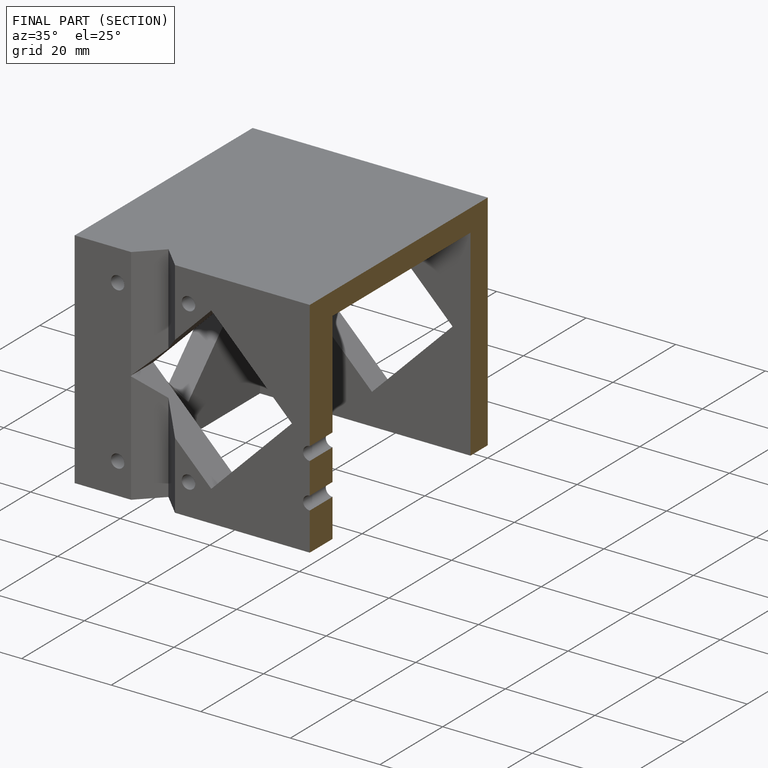
[diagram: finished part — half-section view (interior)]
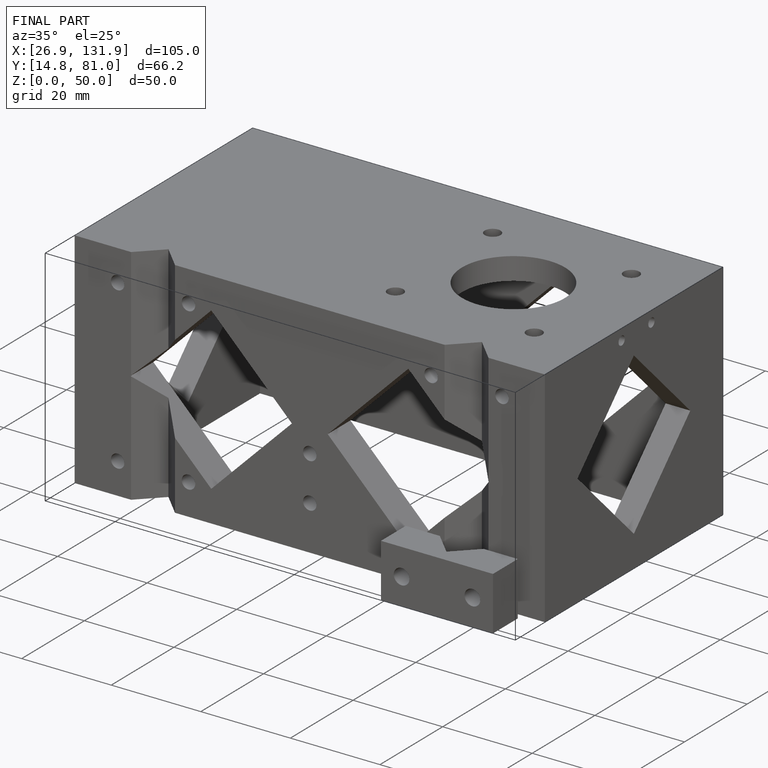
[diagram: finished part — iso view with bounding-box wireframe]
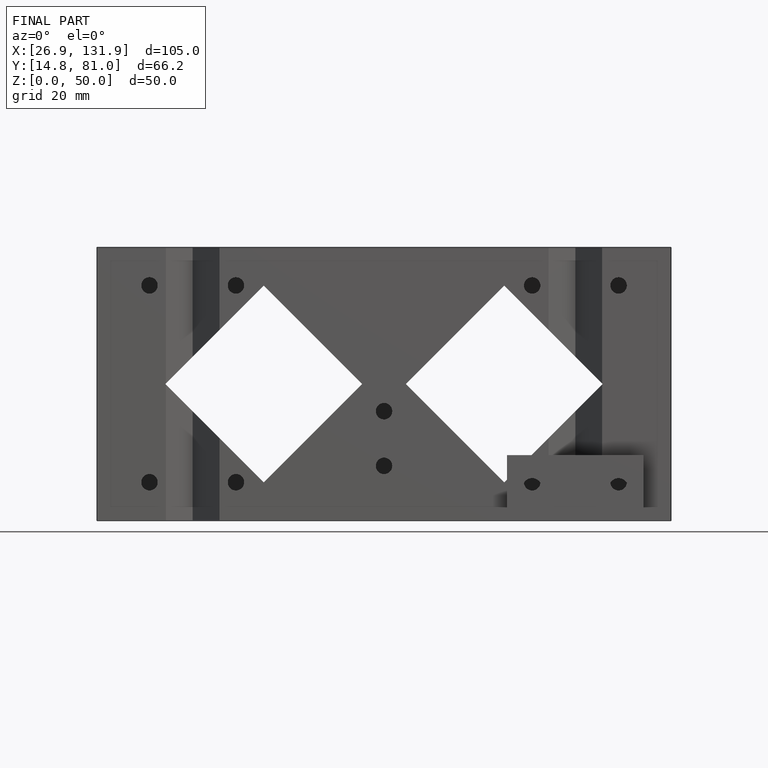
[diagram: finished part — front view with bounding-box wireframe]
